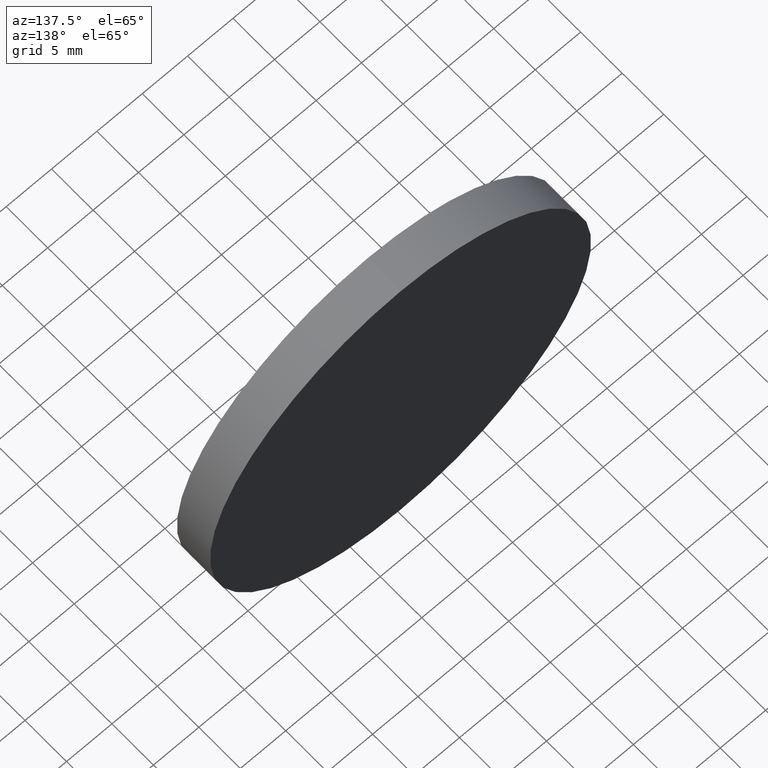
[diagram: clean part render]
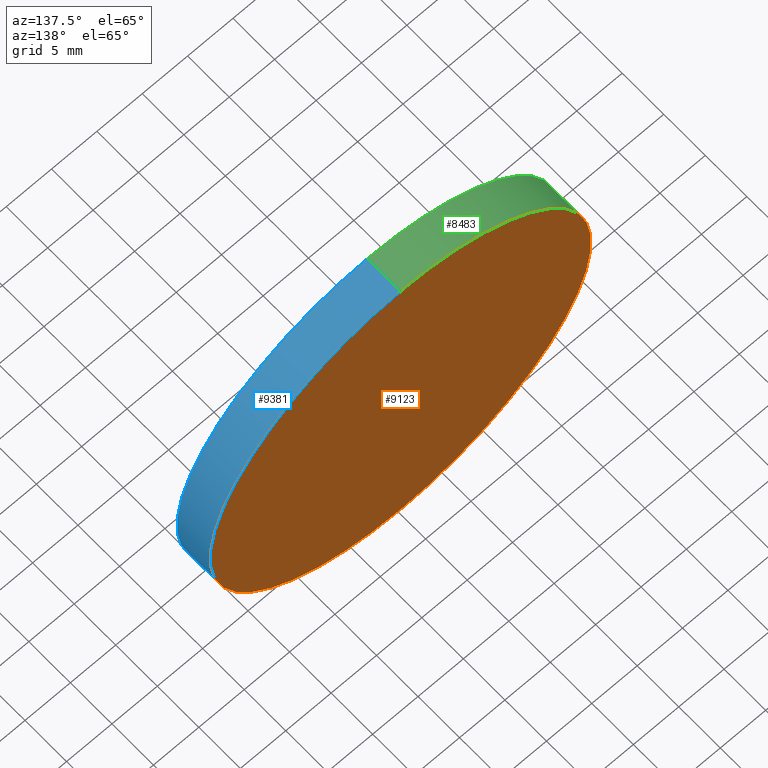
[diagram: same view with three faces highlighted in distinct colors, each labeled with its STEP entity id]
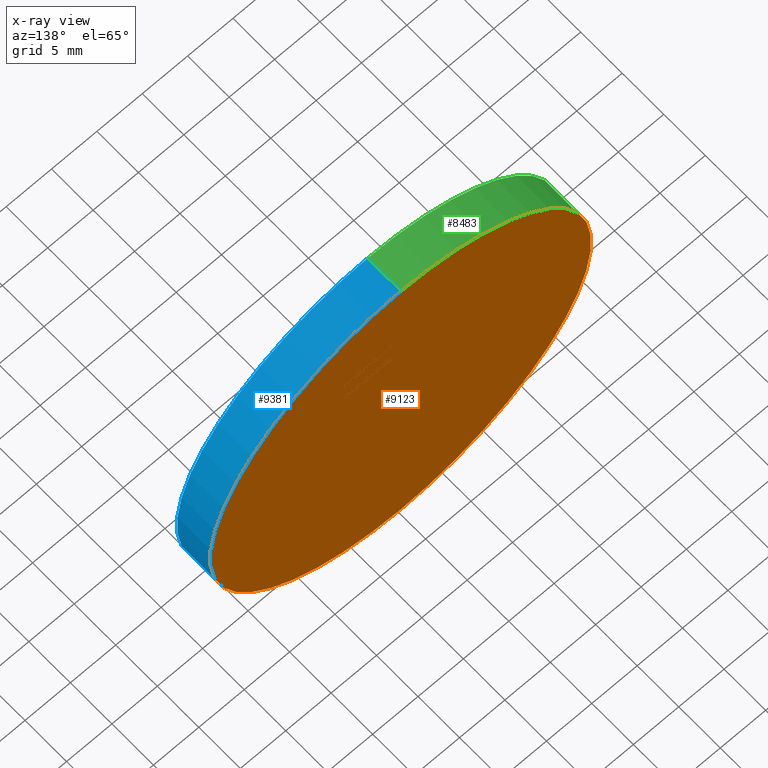
[diagram: x-ray of the same camera — body ghosted, the three highlighted faces saturated]
A machine part, auxiliary view with three faces highlighted in distinct colors.
The next image is the same camera in x-ray (body ghosted, the three faces saturated) — at least one of them is partly hidden behind the body in this view.
Their STEP definitions:

[orange] entity #9123 — the highlighted planar face has unit normal (0, 1, 0).
#343 = VERTEX_POINT ( 'NONE', #2700 ) ;
#870 = PLANE ( 'NONE',  #3764 ) ;
#1012 = ORIENTED_EDGE ( 'NONE', *, *, #6783, .T. ) ;
#1974 = ORIENTED_EDGE ( 'NONE', *, *, #5455, .T. ) ;
#2231 = CARTESIAN_POINT ( 'NONE',  ( 0.000000000000000000, 2.000000000000000000, 0.000000000000000000 ) ) ;
#2499 = AXIS2_PLACEMENT_3D ( 'NONE', #2231, #7238, #9151 ) ;
#2700 = CARTESIAN_POINT ( 'NONE',  ( 2.571758278209441661E-15, 2.000000000000000000, 21.00000000000000000 ) ) ;
#2853 = DIRECTION ( 'NONE',  ( 0.000000000000000000, 1.000000000000000000, 0.000000000000000000 ) ) ;
#3079 = EDGE_LOOP ( 'NONE', ( #1012, #1974 ) ) ;
#3499 = AXIS2_PLACEMENT_3D ( 'NONE', #12184, #7285, #7198 ) ;
#3764 = AXIS2_PLACEMENT_3D ( 'NONE', #4762, #2853, #11725 ) ;
#3845 = FACE_OUTER_BOUND ( 'NONE', #3079, .T. ) ;
#4762 = CARTESIAN_POINT ( 'NONE',  ( 0.000000000000000000, 2.000000000000000000, 0.000000000000000000 ) ) ;
#5455 = EDGE_CURVE ( 'NONE', #343, #6260, #5753, .T. ) ;
#5753 = CIRCLE ( 'NONE', #3499, 21.00000000000000000 ) ;
#6260 = VERTEX_POINT ( 'NONE', #10817 ) ;
#6783 = EDGE_CURVE ( 'NONE', #6260, #343, #12114, .T. ) ;
#7198 = DIRECTION ( 'NONE',  ( 0.000000000000000000, 0.000000000000000000, 1.000000000000000000 ) ) ;
#7238 = DIRECTION ( 'NONE',  ( 0.000000000000000000, 1.000000000000000000, 0.000000000000000000 ) ) ;
#7285 = DIRECTION ( 'NONE',  ( 0.000000000000000000, 1.000000000000000000, 0.000000000000000000 ) ) ;
#9123 = ADVANCED_FACE ( 'NONE', ( #3845 ), #870, .T. ) ;
#9151 = DIRECTION ( 'NONE',  ( 0.000000000000000000, 0.000000000000000000, 1.000000000000000000 ) ) ;
#10817 = CARTESIAN_POINT ( 'NONE',  ( 0.000000000000000000, 2.000000000000000000, -21.00000000000000000 ) ) ;
#11725 = DIRECTION ( 'NONE',  ( 0.000000000000000000, -0.000000000000000000, 1.000000000000000000 ) ) ;
#12114 = CIRCLE ( 'NONE', #2499, 21.00000000000000000 ) ;
#12184 = CARTESIAN_POINT ( 'NONE',  ( 0.000000000000000000, 2.000000000000000000, 0.000000000000000000 ) ) ;

[blue] entity #9381 — the highlighted cylindrical surface (partial cylindrical patch) has radius 21 mm, axis along (-0, -1, -0).
#251 = VERTEX_POINT ( 'NONE', #9421 ) ;
#300 = CIRCLE ( 'NONE', #1601, 21.00000000000000000 ) ;
#343 = VERTEX_POINT ( 'NONE', #2700 ) ;
#445 = AXIS2_PLACEMENT_3D ( 'NONE', #9313, #9182, #10176 ) ;
#479 = EDGE_LOOP ( 'NONE', ( #4501, #3514, #6647, #4559 ) ) ;
#787 = LINE ( 'NONE', #11127, #3096 ) ;
#1363 = CYLINDRICAL_SURFACE ( 'NONE', #445, 21.00000000000000000 ) ;
#1601 = AXIS2_PLACEMENT_3D ( 'NONE', #8477, #7786, #12636 ) ;
#2700 = CARTESIAN_POINT ( 'NONE',  ( 2.571758278209441661E-15, 2.000000000000000000, 21.00000000000000000 ) ) ;
#3096 = VECTOR ( 'NONE', #3113, 1000.000000000000000 ) ;
#3113 = DIRECTION ( 'NONE',  ( -0.000000000000000000, -1.000000000000000000, -0.000000000000000000 ) ) ;
#3499 = AXIS2_PLACEMENT_3D ( 'NONE', #12184, #7285, #7198 ) ;
#3514 = ORIENTED_EDGE ( 'NONE', *, *, #8462, .T. ) ;
#4307 = FACE_OUTER_BOUND ( 'NONE', #479, .T. ) ;
#4501 = ORIENTED_EDGE ( 'NONE', *, *, #5455, .F. ) ;
#4559 = ORIENTED_EDGE ( 'NONE', *, *, #11513, .F. ) ;
#5455 = EDGE_CURVE ( 'NONE', #343, #6260, #5753, .T. ) ;
#5753 = CIRCLE ( 'NONE', #3499, 21.00000000000000000 ) ;
#5770 = CARTESIAN_POINT ( 'NONE',  ( 0.000000000000000000, -2.000000000000000000, -21.00000000000000000 ) ) ;
#6260 = VERTEX_POINT ( 'NONE', #10817 ) ;
#6647 = ORIENTED_EDGE ( 'NONE', *, *, #7296, .T. ) ;
#7198 = DIRECTION ( 'NONE',  ( 0.000000000000000000, 0.000000000000000000, 1.000000000000000000 ) ) ;
#7285 = DIRECTION ( 'NONE',  ( 0.000000000000000000, 1.000000000000000000, 0.000000000000000000 ) ) ;
#7296 = EDGE_CURVE ( 'NONE', #251, #9184, #300, .T. ) ;
#7786 = DIRECTION ( 'NONE',  ( 0.000000000000000000, 1.000000000000000000, 0.000000000000000000 ) ) ;
#8192 = DIRECTION ( 'NONE',  ( -0.000000000000000000, -1.000000000000000000, -0.000000000000000000 ) ) ;
#8462 = EDGE_CURVE ( 'NONE', #343, #251, #11936, .T. ) ;
#8477 = CARTESIAN_POINT ( 'NONE',  ( 0.000000000000000000, -2.000000000000000000, 0.000000000000000000 ) ) ;
#9150 = CARTESIAN_POINT ( 'NONE',  ( 2.571758278209441661E-15, 2.000000000000000000, 21.00000000000000000 ) ) ;
#9182 = DIRECTION ( 'NONE',  ( -0.000000000000000000, -1.000000000000000000, -0.000000000000000000 ) ) ;
#9184 = VERTEX_POINT ( 'NONE', #5770 ) ;
#9313 = CARTESIAN_POINT ( 'NONE',  ( 0.000000000000000000, 2.000000000000000000, 0.000000000000000000 ) ) ;
#9381 = ADVANCED_FACE ( 'NONE', ( #4307 ), #1363, .T. ) ;
#9421 = CARTESIAN_POINT ( 'NONE',  ( 2.571758278209441661E-15, -2.000000000000000000, 21.00000000000000000 ) ) ;
#10176 = DIRECTION ( 'NONE',  ( 0.000000000000000000, 0.000000000000000000, -1.000000000000000000 ) ) ;
#10817 = CARTESIAN_POINT ( 'NONE',  ( 0.000000000000000000, 2.000000000000000000, -21.00000000000000000 ) ) ;
#11013 = VECTOR ( 'NONE', #8192, 1000.000000000000000 ) ;
#11127 = CARTESIAN_POINT ( 'NONE',  ( 0.000000000000000000, 2.000000000000000000, -21.00000000000000000 ) ) ;
#11513 = EDGE_CURVE ( 'NONE', #6260, #9184, #787, .T. ) ;
#11936 = LINE ( 'NONE', #9150, #11013 ) ;
#12184 = CARTESIAN_POINT ( 'NONE',  ( 0.000000000000000000, 2.000000000000000000, 0.000000000000000000 ) ) ;
#12636 = DIRECTION ( 'NONE',  ( 0.000000000000000000, 0.000000000000000000, 1.000000000000000000 ) ) ;

[green] entity #8483 — the highlighted cylindrical surface (partial cylindrical patch) has radius 21 mm, axis along (-0, -1, -0).
#251 = VERTEX_POINT ( 'NONE', #9421 ) ;
#343 = VERTEX_POINT ( 'NONE', #2700 ) ;
#787 = LINE ( 'NONE', #11127, #3096 ) ;
#2231 = CARTESIAN_POINT ( 'NONE',  ( 0.000000000000000000, 2.000000000000000000, 0.000000000000000000 ) ) ;
#2499 = AXIS2_PLACEMENT_3D ( 'NONE', #2231, #7238, #9151 ) ;
#2700 = CARTESIAN_POINT ( 'NONE',  ( 2.571758278209441661E-15, 2.000000000000000000, 21.00000000000000000 ) ) ;
#3058 = DIRECTION ( 'NONE',  ( -0.000000000000000000, -1.000000000000000000, -0.000000000000000000 ) ) ;
#3096 = VECTOR ( 'NONE', #3113, 1000.000000000000000 ) ;
#3113 = DIRECTION ( 'NONE',  ( -0.000000000000000000, -1.000000000000000000, -0.000000000000000000 ) ) ;
#4631 = ORIENTED_EDGE ( 'NONE', *, *, #8879, .T. ) ;
#5258 = CARTESIAN_POINT ( 'NONE',  ( 0.000000000000000000, -2.000000000000000000, 0.000000000000000000 ) ) ;
#5515 = AXIS2_PLACEMENT_3D ( 'NONE', #9973, #3058, #12097 ) ;
#5770 = CARTESIAN_POINT ( 'NONE',  ( 0.000000000000000000, -2.000000000000000000, -21.00000000000000000 ) ) ;
#5934 = ORIENTED_EDGE ( 'NONE', *, *, #8462, .F. ) ;
#6199 = CYLINDRICAL_SURFACE ( 'NONE', #5515, 21.00000000000000000 ) ;
#6260 = VERTEX_POINT ( 'NONE', #10817 ) ;
#6783 = EDGE_CURVE ( 'NONE', #6260, #343, #12114, .T. ) ;
#7238 = DIRECTION ( 'NONE',  ( 0.000000000000000000, 1.000000000000000000, 0.000000000000000000 ) ) ;
#7265 = DIRECTION ( 'NONE',  ( 0.000000000000000000, 0.000000000000000000, 1.000000000000000000 ) ) ;
#7860 = EDGE_LOOP ( 'NONE', ( #5934, #11815, #8476, #4631 ) ) ;
#8192 = DIRECTION ( 'NONE',  ( -0.000000000000000000, -1.000000000000000000, -0.000000000000000000 ) ) ;
#8462 = EDGE_CURVE ( 'NONE', #343, #251, #11936, .T. ) ;
#8476 = ORIENTED_EDGE ( 'NONE', *, *, #11513, .T. ) ;
#8483 = ADVANCED_FACE ( 'NONE', ( #12246 ), #6199, .T. ) ;
#8879 = EDGE_CURVE ( 'NONE', #9184, #251, #9921, .T. ) ;
#9150 = CARTESIAN_POINT ( 'NONE',  ( 2.571758278209441661E-15, 2.000000000000000000, 21.00000000000000000 ) ) ;
#9151 = DIRECTION ( 'NONE',  ( 0.000000000000000000, 0.000000000000000000, 1.000000000000000000 ) ) ;
#9184 = VERTEX_POINT ( 'NONE', #5770 ) ;
#9421 = CARTESIAN_POINT ( 'NONE',  ( 2.571758278209441661E-15, -2.000000000000000000, 21.00000000000000000 ) ) ;
#9921 = CIRCLE ( 'NONE', #12009, 21.00000000000000000 ) ;
#9973 = CARTESIAN_POINT ( 'NONE',  ( 0.000000000000000000, 2.000000000000000000, 0.000000000000000000 ) ) ;
#10817 = CARTESIAN_POINT ( 'NONE',  ( 0.000000000000000000, 2.000000000000000000, -21.00000000000000000 ) ) ;
#11013 = VECTOR ( 'NONE', #8192, 1000.000000000000000 ) ;
#11127 = CARTESIAN_POINT ( 'NONE',  ( 0.000000000000000000, 2.000000000000000000, -21.00000000000000000 ) ) ;
#11180 = DIRECTION ( 'NONE',  ( 0.000000000000000000, 1.000000000000000000, 0.000000000000000000 ) ) ;
#11513 = EDGE_CURVE ( 'NONE', #6260, #9184, #787, .T. ) ;
#11815 = ORIENTED_EDGE ( 'NONE', *, *, #6783, .F. ) ;
#11936 = LINE ( 'NONE', #9150, #11013 ) ;
#12009 = AXIS2_PLACEMENT_3D ( 'NONE', #5258, #11180, #7265 ) ;
#12097 = DIRECTION ( 'NONE',  ( 0.000000000000000000, 0.000000000000000000, -1.000000000000000000 ) ) ;
#12114 = CIRCLE ( 'NONE', #2499, 21.00000000000000000 ) ;
#12246 = FACE_OUTER_BOUND ( 'NONE', #7860, .T. ) ;